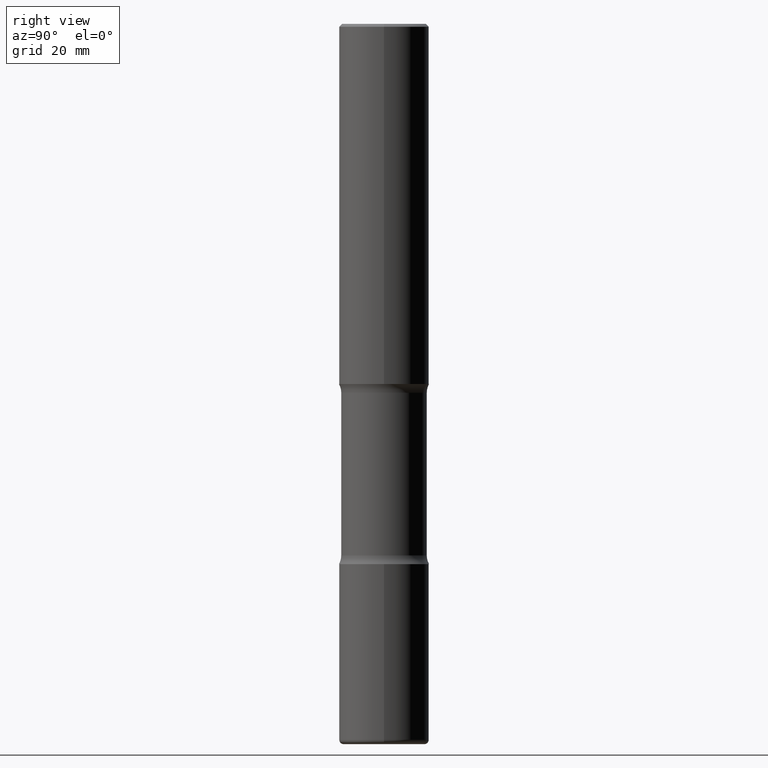
[diagram: clean part render]
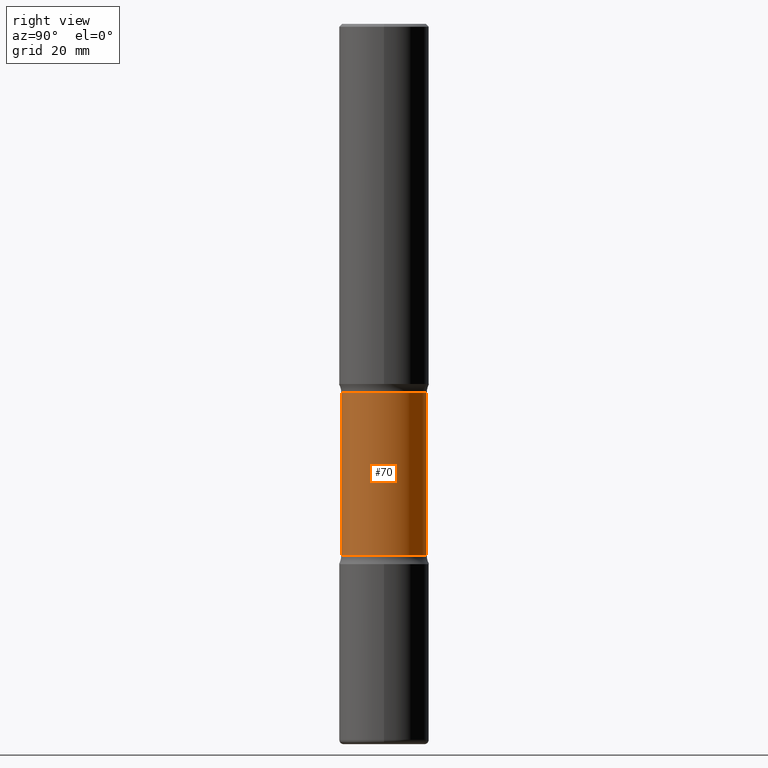
[diagram: same view with one face highlighted and labeled with its STEP entity id]
A machine part, right view. The second image highlights one B-rep face of the part: STEP entity #70.
In plain terms, the highlighted cylindrical surface (partial cylindrical patch) has radius 7.5406 mm, axis along (0, -0, -1).
Its self-contained STEP definition (entity closure, byte-faithful):
#20 = CARTESIAN_POINT ( 'NONE',  ( -2.036710343088299976E-15, -0.2968750000000173195, -4.999999999999999112 ) ) ;
#23 = DIRECTION ( 'NONE',  ( 6.982962677686266711E-15, 1.000000000000000000, -3.680805717779217644E-15 ) ) ;
#47 = DIRECTION ( 'NONE',  ( 2.521457479434076939E-29, -3.382661233743974681E-15, -1.000000000000000000 ) ) ;
#51 = EDGE_CURVE ( 'NONE', #178, #466, #533, .T. ) ;
#70 = ADVANCED_FACE ( 'NONE', ( #437 ), #224, .T. ) ;
#87 = ORIENTED_EDGE ( 'NONE', *, *, #51, .F. ) ;
#96 = DIRECTION ( 'NONE',  ( 6.982962677686265133E-15, 1.000000000000000000, -3.680805717779217644E-15 ) ) ;
#97 = VECTOR ( 'NONE', #369, 39.37007874015748143 ) ;
#102 = CARTESIAN_POINT ( 'NONE',  ( -2.090307983695922804E-15, -0.2968750000000128786, -3.689484635215507069 ) ) ;
#120 = CARTESIAN_POINT ( 'NONE',  ( -2.090307983695953569E-15, -0.2968750000000091038, -2.560515364784489822 ) ) ;
#138 = ORIENTED_EDGE ( 'NONE', *, *, #402, .T. ) ;
#171 = CARTESIAN_POINT ( 'NONE',  ( 2.073067044938200360E-15, 0.2968749999999871214, -3.689484635215509289 ) ) ;
#178 = VERTEX_POINT ( 'NONE', #171 ) ;
#179 = CARTESIAN_POINT ( 'NONE',  ( 2.073067044938171961E-15, 0.2968749999999909517, -2.560515364784492043 ) ) ;
#183 = ORIENTED_EDGE ( 'NONE', *, *, #485, .T. ) ;
#189 = LINE ( 'NONE', #20, #97 ) ;
#195 = VERTEX_POINT ( 'NONE', #120 ) ;
#198 = DIRECTION ( 'NONE',  ( 2.521457479434076939E-29, -3.382661233743975076E-15, -1.000000000000000000 ) ) ;
#211 = ORIENTED_EDGE ( 'NONE', *, *, #351, .F. ) ;
#216 = VERTEX_POINT ( 'NONE', #179 ) ;
#222 = LINE ( 'NONE', #397, #261 ) ;
#224 = CYLINDRICAL_SURFACE ( 'NONE', #399, 0.2968750000000000000 ) ;
#261 = VECTOR ( 'NONE', #47, 39.37007874015748143 ) ;
#272 = CARTESIAN_POINT ( 'NONE',  ( 1.232232987248685960E-28, -1.732138156284176685E-14, -5.000000000000000000 ) ) ;
#273 = CIRCLE ( 'NONE', #354, 0.2968750000000000000 ) ;
#278 = CARTESIAN_POINT ( 'NONE',  ( 6.171273093058203090E-29, -9.069431456984199816E-15, -2.560515364784490711 ) ) ;
#316 = CARTESIAN_POINT ( 'NONE',  ( 9.017921104037724021E-29, -1.288835204215942242E-14, -3.689484635215508401 ) ) ;
#351 = EDGE_CURVE ( 'NONE', #216, #178, #222, .T. ) ;
#354 = AXIS2_PLACEMENT_3D ( 'NONE', #278, #198, #23 ) ;
#361 = DIRECTION ( 'NONE',  ( 6.982962677686266711E-15, 1.000000000000000000, -3.680805717779217644E-15 ) ) ;
#369 = DIRECTION ( 'NONE',  ( 2.521457479434076939E-29, -3.382661233743974681E-15, -1.000000000000000000 ) ) ;
#397 = CARTESIAN_POINT ( 'NONE',  ( 2.073067044938233492E-15, 0.2968749999999827360, -5.000000000000000888 ) ) ;
#399 = AXIS2_PLACEMENT_3D ( 'NONE', #272, #441, #361 ) ;
#402 = EDGE_CURVE ( 'NONE', #216, #195, #273, .T. ) ;
#437 = FACE_OUTER_BOUND ( 'NONE', #526, .T. ) ;
#441 = DIRECTION ( 'NONE',  ( 2.521457479434076939E-29, -3.382661233743975076E-15, -1.000000000000000000 ) ) ;
#466 = VERTEX_POINT ( 'NONE', #102 ) ;
#485 = EDGE_CURVE ( 'NONE', #195, #466, #189, .T. ) ;
#486 = DIRECTION ( 'NONE',  ( 2.521457479434076939E-29, -3.382661233743975076E-15, -1.000000000000000000 ) ) ;
#516 = AXIS2_PLACEMENT_3D ( 'NONE', #316, #486, #96 ) ;
#526 = EDGE_LOOP ( 'NONE', ( #138, #183, #87, #211 ) ) ;
#533 = CIRCLE ( 'NONE', #516, 0.2968750000000000000 ) ;